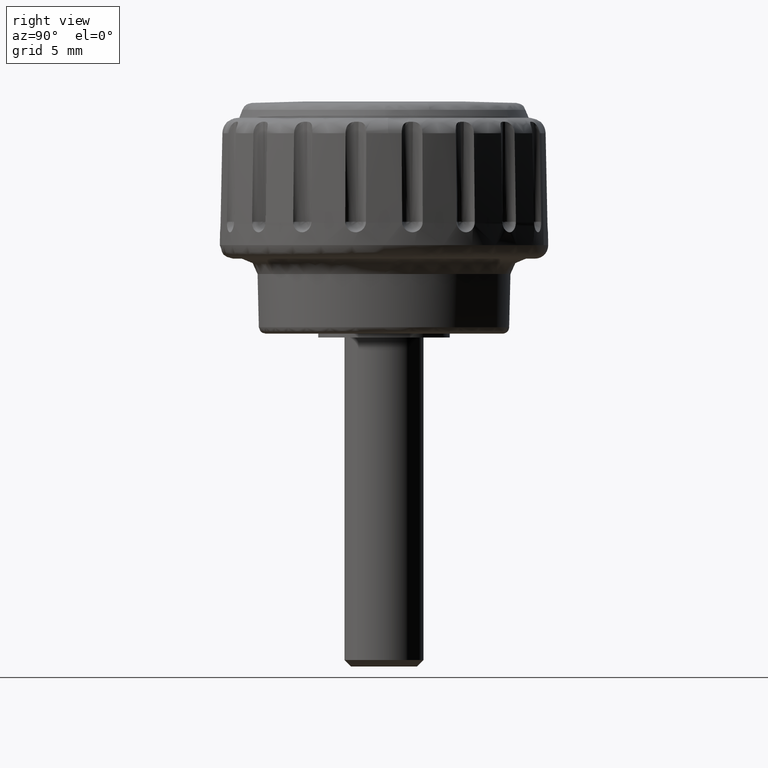
[diagram: clean part render]
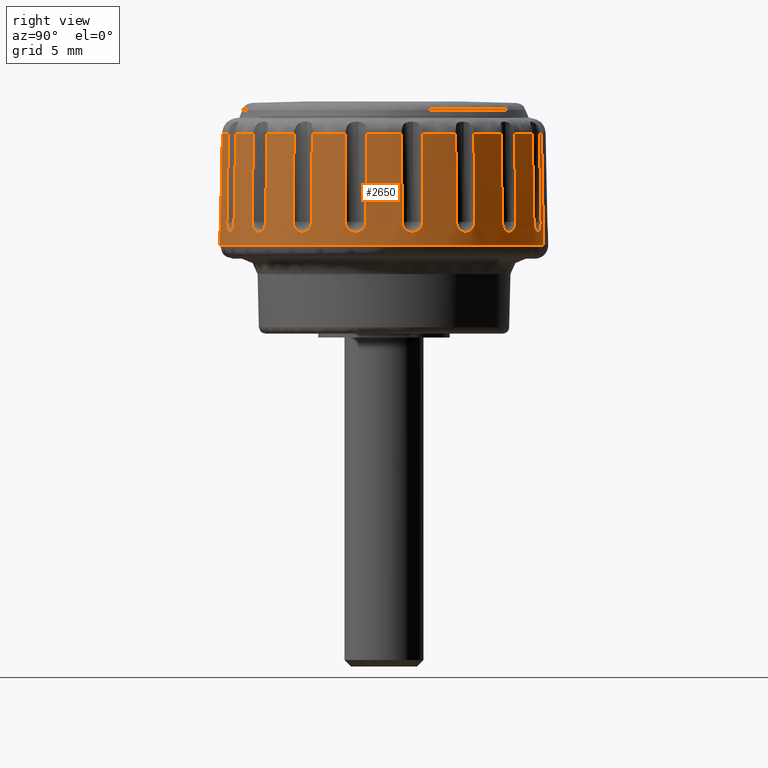
[diagram: same view with one face highlighted and labeled with its STEP entity id]
A machine part, right view. The second image highlights one B-rep face of the part: STEP entity #2650.
In plain terms, the highlighted face is a freeform B-spline surface patch.
Its self-contained STEP definition (entity closure, byte-faithful):
#1895=CARTESIAN_POINT('',(2.873227591302566,11.962629946308075,15.736891026403132));
#1896=CARTESIAN_POINT('',(14.170178331358636,9.249287586843673,15.736891026403127));
#1897=CARTESIAN_POINT('',(12.107375769124920,-2.184354368900753,15.736891026403130));
#1898=CARTESIAN_POINT('',(9.923021400224167,-14.291730138025677,15.736891026403129));
#1899=CARTESIAN_POINT('',(-2.184354368900753,-12.107375769124920,15.736891026403130));
#1900=CARTESIAN_POINT('',(2.915477382514702,12.138536170760844,6.802327856064681));
#1901=CARTESIAN_POINT('',(14.378545770732707,9.385295075630175,6.802327856064681));
#1902=CARTESIAN_POINT('',(12.285410429491140,-2.216474524052658,6.802327856064681));
#1903=CARTESIAN_POINT('',(10.068935905438483,-14.501884953543797,6.802327856064681));
#1904=CARTESIAN_POINT('',(-2.216474524052658,-12.285410429491140,6.802327856064681));
#1912=(BOUNDED_SURFACE()B_SPLINE_SURFACE(2,1,((#1895,#1900),(#1896,#1901),(#1897,#1902),(#1898,#1903),(#1899,#1904)),.UNSPECIFIED.,.F.,.F.,.U.)B_SPLINE_SURFACE_WITH_KNOTS((3,2,3),(2,2),(0.0,19.856407550699821,40.540165416012130),(0.0,8.936394524047545),.UNSPECIFIED.)GEOMETRIC_REPRESENTATION_ITEM()RATIONAL_B_SPLINE_SURFACE(((0.977505800795127,0.977505800795127),(0.718822509939086,0.718822509939086),(1.0,1.0),(0.707106781186548,0.707106781186548),(1.0,1.0)))REPRESENTATION_ITEM('')SURFACE());
#1913=CARTESIAN_POINT('',(2.914446903844929,12.134245757101640,7.020244848311712));
#1914=VERTEX_POINT('',#1913);
#1915=CARTESIAN_POINT('',(12.479339775979300,0.0,7.020244063727410));
#1916=VERTEX_POINT('',#1915);
#1917=CARTESIAN_POINT('',(2.914446903844929,12.134245757101640,7.020244848311712));
#1918=CARTESIAN_POINT('',(3.399610096655220,12.017730701480440,7.020244835623239));
#1919=CARTESIAN_POINT('',(4.376720298687912,11.720061669743661,7.020244806645689));
#1920=CARTESIAN_POINT('',(5.886300649277611,11.049123865005431,7.020244750410749));
#1921=CARTESIAN_POINT('',(7.382687315472131,10.118366461417819,7.020244680233293));
#1922=CARTESIAN_POINT('',(8.840431582089897,8.877807049344654,7.020244593731314));
#1923=CARTESIAN_POINT('',(9.935193952392039,7.608918816061425,7.020244510447437));
#1924=CARTESIAN_POINT('',(10.833394905045610,6.250113309285700,7.020244424854764));
#1925=CARTESIAN_POINT('',(11.453004063922069,5.028399300450916,7.020244350360998));
#1926=CARTESIAN_POINT('',(11.962264473414480,3.641968937104353,7.020244268364826));
#1927=CARTESIAN_POINT('',(12.364128265041851,2.017501421185323,7.020244174844168));
#1928=CARTESIAN_POINT('',(12.479426310907060,0.759289723549299,7.020244104976773));
#1929=CARTESIAN_POINT('',(12.479339775979300,0.0,7.020244063727410));
#1930=B_SPLINE_CURVE_WITH_KNOTS('',3,(#1917,#1918,#1919,#1920,#1921,#1922,#1923,#1924,#1925,#1926,#1927,#1928,#1929),.UNSPECIFIED.,.F.,.U.,(4,1,1,1,1,1,1,1,1,1,4),(0.000000013760989,1.496874883908451,3.058834941180857,4.946209869346665,6.768495263843622,8.786022795933356,9.957486672167367,11.649616012552389,12.886172091508699,14.383055982069781,16.660907701439619),.UNSPECIFIED.);
#1931=EDGE_CURVE('',#1914,#1916,#1930,.T.);
#1932=ORIENTED_EDGE('',*,*,#1931,.F.);
#1933=CARTESIAN_POINT('',(2.874232947293877,11.966815693287270,15.524290036675071));
#1934=VERTEX_POINT('',#1933);
#1935=CARTESIAN_POINT('',(2.874232947293877,11.966815693287270,15.524290036675071));
#1936=CARTESIAN_POINT('',(2.914446903844929,12.134245757101640,7.020244848311712));
#1937=QUASI_UNIFORM_CURVE('',1,(#1935,#1936),.UNSPECIFIED.,.F.,.U.);
#1938=EDGE_CURVE('',#1934,#1914,#1937,.T.);
#1939=ORIENTED_EDGE('',*,*,#1938,.F.);
#1940=CARTESIAN_POINT('',(3.448637072081465,11.814093079763900,15.524289876473100));
#1941=VERTEX_POINT('',#1940);
#1942=CARTESIAN_POINT('',(2.874232947293877,11.966815693287270,15.524290036675071));
#1943=CARTESIAN_POINT('',(3.066893235177232,11.920542169877351,15.524289983315970));
#1944=CARTESIAN_POINT('',(3.258435750314915,11.869614671011281,15.524289929894501));
#1945=CARTESIAN_POINT('',(3.448637072081465,11.814093079763900,15.524289876473100));
#1946=B_SPLINE_CURVE_WITH_KNOTS('',3,(#1942,#1943,#1944,#1945),.UNSPECIFIED.,.F.,.U.,(4,4),(1.234546E-011,0.594419085965772),.UNSPECIFIED.);
#1947=EDGE_CURVE('',#1934,#1941,#1946,.T.);
#1948=ORIENTED_EDGE('',*,*,#1947,.T.);
#1949=CARTESIAN_POINT('',(3.495302366670960,11.942304922920821,8.800002999999810));
#1950=VERTEX_POINT('',#1949);
#1951=CARTESIAN_POINT('',(3.495302366670960,11.942304922920821,8.800002999999810));
#1952=CARTESIAN_POINT('',(3.448637072081465,11.814093079763900,15.524289876473100));
#1953=QUASI_UNIFORM_CURVE('',1,(#1951,#1952),.UNSPECIFIED.,.F.,.U.);
#1954=EDGE_CURVE('',#1950,#1941,#1953,.T.);
#1955=ORIENTED_EDGE('',*,*,#1954,.F.);
#1956=CARTESIAN_POINT('',(4.998808680543220,11.395073377640021,8.800002999999810));
#1957=VERTEX_POINT('',#1956);
#1958=CARTESIAN_POINT('',(3.495302366670960,11.942304922920821,8.800002999999810));
#1959=CARTESIAN_POINT('',(3.495669095978264,11.943312503411690,8.747157524379992));
#1960=CARTESIAN_POINT('',(3.501015047893226,11.942847129943679,8.695204157489473));
#1961=CARTESIAN_POINT('',(3.516185973837361,11.940003938598540,8.618556361589670));
#1962=CARTESIAN_POINT('',(3.522443177315104,11.938695673080121,8.593222296505969));
#1963=CARTESIAN_POINT('',(3.537407681510372,11.935331053380310,8.542993820214605));
#1964=CARTESIAN_POINT('',(3.546156777113873,11.933263597441821,8.518030832137926));
#1965=CARTESIAN_POINT('',(3.575537821462716,11.926040819450071,8.445420545668039));
#1966=CARTESIAN_POINT('',(3.599398347077408,11.919850751685329,8.399506375009811));
#1967=CARTESIAN_POINT('',(3.655532519165203,11.904596265108591,8.312609392020473));
#1968=CARTESIAN_POINT('',(3.688100196912274,11.895440933273020,8.271465663519669));
#1969=CARTESIAN_POINT('',(3.759011031629244,11.874790099617989,8.197699241741427));
#1970=CARTESIAN_POINT('',(3.797599929167139,11.863232620208260,8.164588295599371));
#1971=CARTESIAN_POINT('',(3.860253994152228,11.843867250514950,8.120714271646786));
#1972=CARTESIAN_POINT('',(3.881937038011462,11.837070901632011,8.107086085148756));
#1973=CARTESIAN_POINT('',(3.925944183035346,11.823075237180140,8.082381622929043));
#1974=CARTESIAN_POINT('',(3.970824881411335,11.808605386211360,8.060056669934934));
#1975=CARTESIAN_POINT('',(4.017415223070569,11.793166471850521,8.042419778179699));
#1976=CARTESIAN_POINT('',(4.064867504720312,11.777221745595110,8.027159505494527));
#1977=CARTESIAN_POINT('',(4.089131037161716,11.768959590767000,8.020696974467969));
#1978=CARTESIAN_POINT('',(4.162447605741887,11.743647687692940,8.005191636593210));
#1979=CARTESIAN_POINT('',(4.211722788912519,11.726182675100651,8.000003499474149));
#1980=CARTESIAN_POINT('',(4.311062040074566,11.690026243388100,8.000002500596830));
#1981=CARTESIAN_POINT('',(4.359746777671903,11.671837067721500,8.005189027227013));
#1982=CARTESIAN_POINT('',(4.431367406313970,11.644419531913520,8.020427800111458));
#1983=CARTESIAN_POINT('',(4.455004974283636,11.635258374885570,8.026759811615618));
#1984=CARTESIAN_POINT('',(4.501801552856540,11.616901812122540,8.041985327112938));
#1985=CARTESIAN_POINT('',(4.525019384930421,11.607681574465120,8.050920390209479));
#1986=CARTESIAN_POINT('',(4.592449479143323,11.580589558203799,8.081019574435137));
#1987=CARTESIAN_POINT('',(4.634953326693080,11.563088372775679,8.105574582388540));
#1988=CARTESIAN_POINT('',(4.715166970218690,11.529342742830201,8.163580593571455));
#1989=CARTESIAN_POINT('',(4.753007352857018,11.513032361472829,8.197327670971736));
#1990=CARTESIAN_POINT('',(4.820648321064246,11.483255855820669,8.271038491890975));
#1991=CARTESIAN_POINT('',(4.850904710452025,11.469601091110761,8.311260221877220));
#1992=CARTESIAN_POINT('',(4.890864165298450,11.451148051377469,8.376772121108276));
#1993=CARTESIAN_POINT('',(4.903241191412278,11.445351382540011,8.399459260152321));
#1994=CARTESIAN_POINT('',(4.925636260222671,11.434714480467139,8.445579380772841));
#1995=CARTESIAN_POINT('',(4.945826072052276,11.424963394669829,8.492684682820219));
#1996=CARTESIAN_POINT('',(4.961681867195978,11.416993000446730,8.541733461921730));
#1997=CARTESIAN_POINT('',(4.975344819738416,11.409940284396580,8.591768626921738));
#1998=CARTESIAN_POINT('',(4.981098355296111,11.406862105200281,8.617395477364466));
#1999=CARTESIAN_POINT('',(4.994780849955439,11.399167678839049,8.694902635293731));
#2000=CARTESIAN_POINT('',(4.999175406295649,11.396080948364110,8.747158036628029));
#2001=CARTESIAN_POINT('',(4.998808680543220,11.395073377640021,8.800002999999810));
#2002=B_SPLINE_CURVE_WITH_KNOTS('',3,(#1958,#1959,#1960,#1961,#1962,#1963,#1964,#1965,#1966,#1967,#1968,#1969,#1970,#1971,#1972,#1973,#1974,#1975,#1976,#1977,#1978,#1979,#1980,#1981,#1982,#1983,#1984,#1985,#1986,#1987,#1988,#1989,#1990,#1991,#1992,#1993,#1994,#1995,#1996,#1997,#1998,#1999,#2000,#2001),.UNSPECIFIED.,.F.,.U.,(4,2,2,2,2,2,2,2,1,2,2,2,2,2,2,2,2,2,2,1,2,2,4),(0.0,0.062499999999995,0.093749999999994,0.124999999999993,0.187499999999991,0.249999999999990,0.312499999999989,0.343749999999989,0.374999999999988,0.406249999999988,0.437499999999987,0.499999999999987,0.562499999999986,0.593749999999986,0.624999999999985,0.687499999999987,0.749999999999988,0.812499999999989,0.843749999999991,0.874999999999992,0.906249999999993,0.937499999999995,1.0),.UNSPECIFIED.);
#2003=EDGE_CURVE('',#1950,#1957,#2002,.T.);
#2004=ORIENTED_EDGE('',*,*,#2003,.T.);
#2005=CARTESIAN_POINT('',(4.952143385953650,11.266861534483120,15.524289876473100));
#2006=VERTEX_POINT('',#2005);
#2007=CARTESIAN_POINT('',(4.952143385953650,11.266861534483120,15.524289876473100));
#2008=CARTESIAN_POINT('',(4.998808680543220,11.395073377640021,8.800002999999810));
#2009=QUASI_UNIFORM_CURVE('',1,(#2007,#2008),.UNSPECIFIED.,.F.,.U.);
#2010=EDGE_CURVE('',#2006,#1957,#2009,.T.);
#2011=ORIENTED_EDGE('',*,*,#2010,.F.);
#2012=CARTESIAN_POINT('',(7.281316616807300,9.922112742660501,15.524289876473100));
#2013=VERTEX_POINT('',#2012);
#2014=CARTESIAN_POINT('',(4.952143385953650,11.266861534483120,15.524289876473100));
#2015=CARTESIAN_POINT('',(5.774541146737719,10.905470735297079,15.524289876473100));
#2016=CARTESIAN_POINT('',(6.557168648348348,10.453677012038559,15.524289876473141));
#2017=CARTESIAN_POINT('',(7.281316616807300,9.922112742660501,15.524289876473100));
#2018=B_SPLINE_CURVE_WITH_KNOTS('',3,(#2014,#2015,#2016,#2017),.UNSPECIFIED.,.F.,.U.,(4,4),(2.347380E-010,2.694883445224870),.UNSPECIFIED.);
#2019=EDGE_CURVE('',#2006,#2013,#2018,.T.);
#2020=ORIENTED_EDGE('',*,*,#2019,.T.);
#2021=CARTESIAN_POINT('',(7.369018682752410,10.026631994828620,8.800002999999810));
#2022=VERTEX_POINT('',#2021);
#2023=CARTESIAN_POINT('',(7.369018682752410,10.026631994828620,8.800002999999810));
#2024=CARTESIAN_POINT('',(7.281316616807300,9.922112742660501,15.524289876473100));
#2025=QUASI_UNIFORM_CURVE('',1,(#2023,#2024),.UNSPECIFIED.,.F.,.U.);
#2026=EDGE_CURVE('',#2022,#2013,#2025,.T.);
#2027=ORIENTED_EDGE('',*,*,#2026,.F.);
#2028=CARTESIAN_POINT('',(8.594688259653870,8.998173104905391,8.800002999999810));
#2029=VERTEX_POINT('',#2028);
#2030=CARTESIAN_POINT('',(7.369018682752410,10.026631994828620,8.800002999999810));
#2031=CARTESIAN_POINT('',(7.369707908400160,10.027453381970510,8.747157524379949));
#2032=CARTESIAN_POINT('',(7.374572292866011,10.025187650716161,8.695204157489485));
#2033=CARTESIAN_POINT('',(7.387855871314848,10.017327162523850,8.618556361589622));
#2034=CARTESIAN_POINT('',(7.393288266089595,10.013957705439831,8.593222296505910));
#2035=CARTESIAN_POINT('',(7.406199532543651,10.005677835266489,8.542993820214505));
#2036=CARTESIAN_POINT('',(7.413713881544318,10.000742695245069,8.518030832137987));
#2037=CARTESIAN_POINT('',(7.438852696545972,9.983906595065390,8.445420545668053));
#2038=CARTESIAN_POINT('',(7.459157128530090,9.969929053674138,8.399506375009789));
#2039=CARTESIAN_POINT('',(7.506688654129601,9.936395507621144,8.312609392020390));
#2040=CARTESIAN_POINT('',(7.534160952678018,9.916653508043607,8.271465663519704));
#2041=CARTESIAN_POINT('',(7.593732339708849,9.872995138191637,8.197699241741418));
#2042=CARTESIAN_POINT('',(7.626041151205290,9.848936479808724,8.164588295599353));
#2043=CARTESIAN_POINT('',(7.678293367215979,9.809310032522975,8.120714271646742));
#2044=CARTESIAN_POINT('',(7.696344275307574,9.795507515860965,8.107086085148772));
#2045=CARTESIAN_POINT('',(7.732910665586616,9.767304563204130,8.082381622929042));
#2046=CARTESIAN_POINT('',(7.770135746163999,9.738357248133768,8.060056669934891));
#2047=CARTESIAN_POINT('',(7.808635926718623,9.707914578904044,8.042419778179724));
#2048=CARTESIAN_POINT('',(7.847773068065181,9.676701801130403,8.027159505494545));
#2049=CARTESIAN_POINT('',(7.867747507076044,9.660639298363455,8.020696974467969));
#2050=CARTESIAN_POINT('',(7.927985364834942,9.611778146532775,8.005191636593208));
#2051=CARTESIAN_POINT('',(7.968315504738261,9.578513297867445,8.000003499474156));
#2052=CARTESIAN_POINT('',(8.049297638053151,9.510561340872911,8.000002500596830));
#2053=CARTESIAN_POINT('',(8.088825262249795,9.476817945790019,8.005189027227019));
#2054=CARTESIAN_POINT('',(8.146749288954098,9.426558192037900,8.020427800111461));
#2055=CARTESIAN_POINT('',(8.165828036908785,9.409864995996010,8.026759811615602));
#2056=CARTESIAN_POINT('',(8.203524122244589,9.376610096913950,8.041985327112919));
#2057=CARTESIAN_POINT('',(8.222188240710004,9.360004941371726,8.050920390209480));
#2058=CARTESIAN_POINT('',(8.276285787376068,9.311484323121613,8.081019574435144));
#2059=CARTESIAN_POINT('',(8.310240581325077,9.280501416288951,8.105574582388536));
#2060=CARTESIAN_POINT('',(8.374075065041845,9.221356214990134,8.163580593571439));
#2061=CARTESIAN_POINT('',(8.404054914405347,9.193087296892864,8.197327670971717));
#2062=CARTESIAN_POINT('',(8.457432468361567,9.141971960617843,8.271038491890913));
#2063=CARTESIAN_POINT('',(8.481193969617699,9.118792384346463,8.311260221877152));
#2064=CARTESIAN_POINT('',(8.512432263173128,9.087785260604251,8.376772121108163));
#2065=CARTESIAN_POINT('',(8.522080285773033,9.078104981427090,8.399459260152337));
#2066=CARTESIAN_POINT('',(8.539486731904626,9.060449998396875,8.445579380772831));
#2067=CARTESIAN_POINT('',(8.555123881333945,9.044381652692863,8.492684682820199));
#2068=CARTESIAN_POINT('',(8.567297419652698,9.031468930729012,8.541733461921634));
#2069=CARTESIAN_POINT('',(8.577724224380660,9.020168540513369,8.591768626921608));
#2070=CARTESIAN_POINT('',(8.582077979997752,9.015308173181088,8.617395477364502));
#2071=CARTESIAN_POINT('',(8.592303670456175,9.003398088723833,8.694902635293719));
#2072=CARTESIAN_POINT('',(8.595377478620826,8.998994484085262,8.747158036628038));
#2073=CARTESIAN_POINT('',(8.594688259653870,8.998173104905391,8.800002999999810));
#2074=B_SPLINE_CURVE_WITH_KNOTS('',3,(#2030,#2031,#2032,#2033,#2034,#2035,#2036,#2037,#2038,#2039,#2040,#2041,#2042,#2043,#2044,#2045,#2046,#2047,#2048,#2049,#2050,#2051,#2052,#2053,#2054,#2055,#2056,#2057,#2058,#2059,#2060,#2061,#2062,#2063,#2064,#2065,#2066,#2067,#2068,#2069,#2070,#2071,#2072,#2073),.UNSPECIFIED.,.F.,.U.,(4,2,2,2,2,2,2,2,1,2,2,2,2,2,2,2,2,2,2,1,2,2,4),(0.0,0.062500000000001,0.093750000000001,0.125000000000001,0.187500000000004,0.250000000000007,0.312500000000009,0.343750000000010,0.375000000000010,0.406250000000011,0.437500000000011,0.500000000000012,0.562500000000013,0.593750000000012,0.625000000000012,0.687500000000009,0.750000000000006,0.812500000000004,0.843750000000004,0.875000000000003,0.906250000000003,0.937500000000003,1.0),.UNSPECIFIED.);
#2075=EDGE_CURVE('',#2022,#2029,#2074,.T.);
#2076=ORIENTED_EDGE('',*,*,#2075,.T.);
#2077=CARTESIAN_POINT('',(8.506986193708729,8.893653852737311,15.524289876473100));
#2078=VERTEX_POINT('',#2077);
#2079=CARTESIAN_POINT('',(8.506986193708729,8.893653852737311,15.524289876473100));
#2080=CARTESIAN_POINT('',(8.594688259653870,8.998173104905391,8.800002999999810));
#2081=QUASI_UNIFORM_CURVE('',1,(#2079,#2080),.UNSPECIFIED.,.F.,.U.);
#2082=EDGE_CURVE('',#2078,#2029,#2081,.T.);
#2083=ORIENTED_EDGE('',*,*,#2082,.F.);
#2084=CARTESIAN_POINT('',(10.235761916757779,6.833379174003980,15.524289876473100));
#2085=VERTEX_POINT('',#2084);
#2086=CARTESIAN_POINT('',(8.506986193708729,8.893653852737311,15.524289876473100));
#2087=CARTESIAN_POINT('',(9.156224093087847,8.272814631392524,15.524289876473089));
#2088=CARTESIAN_POINT('',(9.737049416980078,7.580524321117348,15.524289876473111));
#2089=CARTESIAN_POINT('',(10.235761916757779,6.833379174003980,15.524289876473100));
#2090=B_SPLINE_CURVE_WITH_KNOTS('',3,(#2086,#2087,#2088,#2089),.UNSPECIFIED.,.F.,.U.,(4,4),(2.343707E-010,2.694883445224844),.UNSPECIFIED.);
#2091=EDGE_CURVE('',#2078,#2085,#2090,.T.);
#2092=ORIENTED_EDGE('',*,*,#2091,.T.);
#2093=CARTESIAN_POINT('',(10.353922590560940,6.901599270831820,8.800002999999810));
#2094=VERTEX_POINT('',#2093);
#2095=CARTESIAN_POINT('',(10.353922590560940,6.901599270831820,8.800002999999810));
#2096=CARTESIAN_POINT('',(10.235761916757779,6.833379174003980,15.524289876473100));
#2097=QUASI_UNIFORM_CURVE('',1,(#2095,#2096),.UNSPECIFIED.,.F.,.U.);
#2098=EDGE_CURVE('',#2094,#2085,#2097,.T.);
#2099=ORIENTED_EDGE('',*,*,#2098,.F.);
#2100=CARTESIAN_POINT('',(11.153921590561000,5.515960356827460,8.800002999999810));
#2101=VERTEX_POINT('',#2100);
#2102=CARTESIAN_POINT('',(10.353922590560940,6.901599270831820,8.800002999999810));
#2103=CARTESIAN_POINT('',(10.354851181764220,6.902135393213000,8.747157524380036));
#2104=CARTESIAN_POINT('',(10.358647282222440,6.898342584801408,8.695204157489465));
#2105=CARTESIAN_POINT('',(10.368441317570280,6.886412890646386,8.618556361589716));
#2106=CARTESIAN_POINT('',(10.372393676658440,6.881388648249114,8.593222296506037));
#2107=CARTESIAN_POINT('',(10.381694416086900,6.869192202143057,8.542993820214701));
#2108=CARTESIAN_POINT('',(10.387067677095439,6.861984628760082,8.518030832137853));
#2109=CARTESIAN_POINT('',(10.404932150651289,6.837565888548553,8.445420545668023));
#2110=CARTESIAN_POINT('',(10.419231474846031,6.817486771309103,8.399506375009839));
#2111=CARTESIAN_POINT('',(10.452427350479290,6.769718806336356,8.312609392020553));
#2112=CARTESIAN_POINT('',(10.471490705176290,6.741771315526676,8.271465663519654));
#2113=CARTESIAN_POINT('',(10.512537456064990,6.680371253210895,8.197699241741447));
#2114=CARTESIAN_POINT('',(10.534669262026190,6.646713245123804,8.164588295599417));
#2115=CARTESIAN_POINT('',(10.570217240650949,6.591605254612426,8.120714271646836));
#2116=CARTESIAN_POINT('',(10.582458807056200,6.572461357384078,8.107086085148756));
#2117=CARTESIAN_POINT('',(10.607173996260279,6.533452808843954,8.082381622929043));
#2118=CARTESIAN_POINT('',(10.632253564937750,6.493519503086408,8.060056669934918));
#2119=CARTESIAN_POINT('',(10.658019894410669,6.451744914182886,8.042419778179728));
#2120=CARTESIAN_POINT('',(10.684121378604949,6.409028806542081,8.027159505494558));
#2121=CARTESIAN_POINT('',(10.697397512049310,6.387103330727235,8.020696974467981));
#2122=CARTESIAN_POINT('',(10.737291084325109,6.320586306164531,8.005191636593223));
#2123=CARTESIAN_POINT('',(10.763811770879290,6.275533853112103,8.000003499474151));
#2124=CARTESIAN_POINT('',(10.816669145900290,6.183982379713186,8.000002500596837));
#2125=CARTESIAN_POINT('',(10.842272041852540,6.138754716660458,8.005189027227017));
#2126=CARTESIAN_POINT('',(10.879512974130989,6.071714813021650,8.020427800111460));
#2127=CARTESIAN_POINT('',(10.891731723495040,6.049503023773815,8.026759811615611));
#2128=CARTESIAN_POINT('',(10.915780611367291,6.005360819992045,8.041985327112931));
#2129=CARTESIAN_POINT('',(10.927639848084169,5.983373573389522,8.050920390209438));
#2130=CARTESIAN_POINT('',(10.961879884680769,5.919276655799567,8.081019574435100));
#2131=CARTESIAN_POINT('',(10.983190175759420,5.878549023385364,8.105574582388535));
#2132=CARTESIAN_POINT('',(11.022946118834540,5.801138034899981,8.163580593571485));
#2133=CARTESIAN_POINT('',(11.041449422634329,5.764320228790346,8.197327670971651));
#2134=CARTESIAN_POINT('',(11.074125441563719,5.698031325829155,8.271038491890941));
#2135=CARTESIAN_POINT('',(11.088526066954360,5.668122736988709,8.311260221877232));
#2136=CARTESIAN_POINT('',(11.107275399987930,5.628301445977239,8.376772121108340));
#2137=CARTESIAN_POINT('',(11.113030725158570,5.615905140995028,8.399459260152206));
#2138=CARTESIAN_POINT('',(11.123349074316151,5.593361528520672,8.445579380772767));
#2139=CARTESIAN_POINT('',(11.132547465392751,5.572913991616832,8.492684682859542));
#2140=CARTESIAN_POINT('',(11.139570463454509,5.556616417681085,8.541733461921734));
#2141=CARTESIAN_POINT('',(11.145503493834569,5.542431347135945,8.591768626921791));
#2142=CARTESIAN_POINT('',(11.147932342329030,5.536375023699403,8.617395477364363));
#2143=CARTESIAN_POINT('',(11.153467859402170,5.521685813105747,8.694902635293699));
#2144=CARTESIAN_POINT('',(11.154850172763149,5.516496474011799,8.747158036627962));
#2145=CARTESIAN_POINT('',(11.153921590561000,5.515960356827460,8.800002999999810));
#2146=B_SPLINE_CURVE_WITH_KNOTS('',3,(#2102,#2103,#2104,#2105,#2106,#2107,#2108,#2109,#2110,#2111,#2112,#2113,#2114,#2115,#2116,#2117,#2118,#2119,#2120,#2121,#2122,#2123,#2124,#2125,#2126,#2127,#2128,#2129,#2130,#2131,#2132,#2133,#2134,#2135,#2136,#2137,#2138,#2139,#2140,#2141,#2142,#2143,#2144,#2145),.UNSPECIFIED.,.F.,.U.,(4,2,2,2,2,2,2,2,1,2,2,2,2,2,2,2,2,2,2,1,2,2,4),(0.0,0.062500000000001,0.093750000000001,0.125000000000002,0.187500000000001,0.250000000000000,0.312499999999999,0.343749999999998,0.374999999999998,0.406249999999998,0.437499999999998,0.499999999999999,0.562499999999999,0.593749999999999,0.624999999999998,0.687499999999999,0.749999999999999,0.812499999999999,0.843749999999999,0.874999999999999,0.906249999999999,0.937500000000000,1.0),.UNSPECIFIED.);
#2147=EDGE_CURVE('',#2094,#2101,#2146,.T.);
#2148=ORIENTED_EDGE('',*,*,#2147,.T.);
#2149=CARTESIAN_POINT('',(11.035760916757820,5.447740259999610,15.524289876473100));
#2150=VERTEX_POINT('',#2149);
#2151=CARTESIAN_POINT('',(11.035760916757820,5.447740259999610,15.524289876473100));
#2152=CARTESIAN_POINT('',(11.153921590561000,5.515960356827460,8.800002999999810));
#2153=QUASI_UNIFORM_CURVE('',1,(#2151,#2152),.UNSPECIFIED.,.F.,.U.);
#2154=EDGE_CURVE('',#2150,#2101,#2153,.T.);
#2155=ORIENTED_EDGE('',*,*,#2154,.F.);
#2156=CARTESIAN_POINT('',(11.955623265790200,2.920439227026650,15.524289876473100));
#2157=VERTEX_POINT('',#2156);
#2158=CARTESIAN_POINT('',(11.035760916757820,5.447740259999610,15.524289876473100));
#2159=CARTESIAN_POINT('',(11.433456689158371,4.642271841880040,15.524289876473130));
#2160=CARTESIAN_POINT('',(11.742577253155520,3.793114407490082,15.524289876473080));
#2161=CARTESIAN_POINT('',(11.955623265790200,2.920439227026650,15.524289876473100));
#2162=B_SPLINE_CURVE_WITH_KNOTS('',3,(#2158,#2159,#2160,#2161),.UNSPECIFIED.,.F.,.U.,(4,4),(2.347829E-010,2.694883445224855),.UNSPECIFIED.);
#2163=EDGE_CURVE('',#2150,#2157,#2162,.T.);
#2164=ORIENTED_EDGE('',*,*,#2163,.T.);
#2165=CARTESIAN_POINT('',(12.089990626324900,2.944131818015480,8.800002999999810));
#2166=VERTEX_POINT('',#2165);
#2167=CARTESIAN_POINT('',(12.089990626324900,2.944131818015480,8.800002999999810));
#2168=CARTESIAN_POINT('',(11.955623265790200,2.920439227026650,15.524289876473100));
#2169=QUASI_UNIFORM_CURVE('',1,(#2167,#2168),.UNSPECIFIED.,.F.,.U.);
#2170=EDGE_CURVE('',#2166,#2157,#2169,.T.);
#2171=ORIENTED_EDGE('',*,*,#2170,.F.);
#2172=CARTESIAN_POINT('',(12.367827363295619,1.368441382811472,8.800002999999810));
#2173=VERTEX_POINT('',#2172);
#2174=CARTESIAN_POINT('',(12.089990626324900,2.944131818015480,8.800002999999810));
#2175=CARTESIAN_POINT('',(12.091046581280001,2.944318011364476,8.747157524380002));
#2176=CARTESIAN_POINT('',(12.093316531991899,2.939455594464785,8.695204157489478));
#2177=CARTESIAN_POINT('',(12.098439719031250,2.924895591525663,8.618556361589675));
#2178=CARTESIAN_POINT('',(12.100435329596269,2.918822561598097,8.593222296505973));
#2179=CARTESIAN_POINT('',(12.105003735559800,2.904180610960054,8.542993820214610));
#2180=CARTESIAN_POINT('',(12.107587813997601,2.895569943938059,8.518030832137910));
#2181=CARTESIAN_POINT('',(12.116023226945270,2.866513824146375,8.445420545668032));
#2182=CARTESIAN_POINT('',(12.122592733817211,2.842754968934004,8.399506375009821));
#2183=CARTESIAN_POINT('',(12.137449046963960,2.786514106597207,8.312609392020486));
#2184=CARTESIAN_POINT('',(12.145804135887820,2.753732004408203,8.271465663519662));
#2185=CARTESIAN_POINT('',(12.163375406691721,2.681996003312240,8.197699241741422));
#2186=CARTESIAN_POINT('',(12.172660784688130,2.642798298035515,8.164588295599385));
#2187=CARTESIAN_POINT('',(12.187216915072581,2.578855601261422,8.120714271646792));
#2188=CARTESIAN_POINT('',(12.192172626216591,2.556679360006469,8.107086085148762));
#2189=CARTESIAN_POINT('',(12.202055597770389,2.511570222241835,8.082381622929043));
#2190=CARTESIAN_POINT('',(12.211964688430429,2.465467471824254,8.060056669934928));
#2191=CARTESIAN_POINT('',(12.221889367216709,2.417399595195940,8.042419778179720));
#2192=CARTESIAN_POINT('',(12.231806970048011,2.368332350692027,8.027159505494543));
#2193=CARTESIAN_POINT('',(12.236783500297561,2.343188437798165,8.020696974467978));
#2194=CARTESIAN_POINT('',(12.251521033507380,2.267038475352408,8.005191636593219));
#2195=CARTESIAN_POINT('',(12.261033480510360,2.215632408654371,8.000003499474152));
#2196=CARTESIAN_POINT('',(12.279390717718130,2.111523877698843,8.000002500596835));
#2197=CARTESIAN_POINT('',(12.287980798315621,2.060267070329668,8.005189027227008));
#2198=CARTESIAN_POINT('',(12.300046830117770,1.984533018586640,8.020427800111452));
#2199=CARTESIAN_POINT('',(12.303931819388341,1.959481705727251,8.026759811615616));
#2200=CARTESIAN_POINT('',(12.311432858995850,1.909776398491409,8.041985327112931));
#2201=CARTESIAN_POINT('',(12.315056814992531,1.885059047265927,8.050920390209463));
#2202=CARTESIAN_POINT('',(12.325309487776940,1.813116864567312,8.081019574435123));
#2203=CARTESIAN_POINT('',(12.331404940374719,1.767556860116587,8.105574582388549));
#2204=CARTESIAN_POINT('',(12.342287189338039,1.681216992120559,8.163580593571474));
#2205=CARTESIAN_POINT('',(12.347082176056309,1.640291068788143,8.197327670971708));
#2206=CARTESIAN_POINT('',(12.355115449829221,1.566824019158020,8.271038491890950));
#2207=CARTESIAN_POINT('',(12.358418271401630,1.533793834966449,8.311260221877204));
#2208=CARTESIAN_POINT('',(12.362417197638770,1.489961412081421,8.376772121108269));
#2209=CARTESIAN_POINT('',(12.363585648225120,1.476344258624803,8.399459260152273));
#2210=CARTESIAN_POINT('',(12.365571355217639,1.451631109079056,8.445579380772802));
#2211=CARTESIAN_POINT('',(12.367221573117490,1.429270676238424,8.492684682820226));
#2212=CARTESIAN_POINT('',(12.368246906813971,1.411553957735127,8.541733461921702));
#2213=CARTESIAN_POINT('',(12.368970551820070,1.396195135717594,8.591768626921720));
#2214=CARTESIAN_POINT('',(12.369181538217530,1.389673338164938,8.617395477364429));
#2215=CARTESIAN_POINT('',(12.369359216850819,1.373976737022194,8.694902635293715));
#2216=CARTESIAN_POINT('',(12.368883308015020,1.368627574355636,8.747158036628013));
#2217=CARTESIAN_POINT('',(12.367827363295619,1.368441382811470,8.800002999999810));
#2218=B_SPLINE_CURVE_WITH_KNOTS('',3,(#2174,#2175,#2176,#2177,#2178,#2179,#2180,#2181,#2182,#2183,#2184,#2185,#2186,#2187,#2188,#2189,#2190,#2191,#2192,#2193,#2194,#2195,#2196,#2197,#2198,#2199,#2200,#2201,#2202,#2203,#2204,#2205,#2206,#2207,#2208,#2209,#2210,#2211,#2212,#2213,#2214,#2215,#2216,#2217),.UNSPECIFIED.,.F.,.U.,(4,2,2,2,2,2,2,2,1,2,2,2,2,2,2,2,2,2,2,1,2,2,4),(0.0,0.062499999999997,0.093749999999996,0.124999999999995,0.187499999999994,0.249999999999994,0.312499999999993,0.343749999999994,0.374999999999994,0.406249999999994,0.437499999999995,0.499999999999996,0.562499999999996,0.593749999999996,0.624999999999996,0.687499999999996,0.749999999999996,0.812499999999995,0.843749999999996,0.874999999999997,0.906249999999998,0.937499999999999,1.0),.UNSPECIFIED.);
#2219=EDGE_CURVE('',#2166,#2173,#2218,.T.);
#2220=ORIENTED_EDGE('',*,*,#2219,.T.);
#2221=CARTESIAN_POINT('',(12.233460002760941,1.344748791822618,15.524289876473100));
#2222=VERTEX_POINT('',#2221);
#2223=CARTESIAN_POINT('',(12.233460002760941,1.344748791822618,15.524289876473100));
#2224=CARTESIAN_POINT('',(12.367827363295619,1.368441382811472,8.800002999999810));
#2225=QUASI_UNIFORM_CURVE('',1,(#2223,#2224),.UNSPECIFIED.,.F.,.U.);
#2226=EDGE_CURVE('',#2222,#2173,#2225,.T.);
#2227=ORIENTED_EDGE('',*,*,#2226,.F.);
#2228=CARTESIAN_POINT('',(12.303261313692831,0.309279804954855,15.524289879475759));
#2229=VERTEX_POINT('',#2228);
#2230=CARTESIAN_POINT('',(12.233460002760941,1.344748791822618,15.524289876473100));
#2231=CARTESIAN_POINT('',(12.271272379531560,1.000778727368414,15.524289876472981));
#2232=CARTESIAN_POINT('',(12.294567705809600,0.655212709790345,15.524289877475001));
#2233=CARTESIAN_POINT('',(12.303261313692831,0.309279804954855,15.524289879475759));
#2234=B_SPLINE_CURVE_WITH_KNOTS('',3,(#2230,#2231,#2232,#2233),.UNSPECIFIED.,.F.,.U.,(4,4),(5.050749E-011,1.038127929016137),.UNSPECIFIED.);
#2235=EDGE_CURVE('',#2222,#2229,#2234,.T.);
#2236=ORIENTED_EDGE('',*,*,#2235,.T.);
#2237=CARTESIAN_POINT('',(12.233460002760941,-1.344748791822626,15.524289876473100));
#2238=VERTEX_POINT('',#2237);
#2239=CARTESIAN_POINT('',(12.303261313692831,0.309279804954855,15.524289879475759));
#2240=CARTESIAN_POINT('',(12.317149665952041,-0.242796520837512,15.524289877476750));
#2241=CARTESIAN_POINT('',(12.293819134657481,-0.795805840563057,15.524289876472620));
#2242=CARTESIAN_POINT('',(12.233460002760941,-1.344748791822626,15.524289876473100));
#2243=B_SPLINE_CURVE_WITH_KNOTS('',3,(#2239,#2240,#2241,#2242),.UNSPECIFIED.,.F.,.U.,(4,4),(1.290634E-010,1.656752682503111),.UNSPECIFIED.);
#2244=EDGE_CURVE('',#2229,#2238,#2243,.T.);
#2245=ORIENTED_EDGE('',*,*,#2244,.T.);
#2246=CARTESIAN_POINT('',(12.367827363295619,-1.368441382811472,8.800002999999810));
#2247=VERTEX_POINT('',#2246);
#2248=CARTESIAN_POINT('',(12.367827363295619,-1.368441382811472,8.800002999999810));
#2249=CARTESIAN_POINT('',(12.233460002760941,-1.344748791822626,15.524289876473100));
#2250=QUASI_UNIFORM_CURVE('',1,(#2248,#2249),.UNSPECIFIED.,.F.,.U.);
#2251=EDGE_CURVE('',#2247,#2238,#2250,.T.);
#2252=ORIENTED_EDGE('',*,*,#2251,.F.);
#2253=CARTESIAN_POINT('',(12.089990626324900,-2.944131818015490,8.800002999999810));
#2254=VERTEX_POINT('',#2253);
#2255=CARTESIAN_POINT('',(12.367827363295619,-1.368441382811472,8.800002999999810));
#2256=CARTESIAN_POINT('',(12.368883318250729,-1.368627576160469,8.747157524379961));
#2257=CARTESIAN_POINT('',(12.369353329659230,-1.373973122308762,8.695204157489494));
#2258=CARTESIAN_POINT('',(12.369187736422949,-1.389407282794771,8.618556361589635));
#2259=CARTESIAN_POINT('',(12.368985898378620,-1.395796603215010,8.593222296505916));
#2260=CARTESIAN_POINT('',(12.368270953695511,-1.411118023045921,8.542993820214514));
#2261=CARTESIAN_POINT('',(12.367754171566050,-1.420093210184130,8.518030832137979));
#2262=CARTESIAN_POINT('',(12.365743088610619,-1.450282112686436,8.445420545668045));
#2263=CARTESIAN_POINT('',(12.363790398675400,-1.474855037289759,8.399506375009802));
#2264=CARTESIAN_POINT('',(12.358515258714281,-1.532785318966071,8.312609392020406));
#2265=CARTESIAN_POINT('',(12.355154334832850,-1.566448027198091,8.271465663519699));
#2266=CARTESIAN_POINT('',(12.347130770968640,-1.639867546631460,8.197699241741418));
#2267=CARTESIAN_POINT('',(12.342449767376280,-1.679877127344926,8.164588295599362));
#2268=CARTESIAN_POINT('',(12.334258365370451,-1.744942097457088,8.120714271646756));
#2269=CARTESIAN_POINT('',(12.331330489350780,-1.767475900756800,8.107086085148779));
#2270=CARTESIAN_POINT('',(12.325189211027761,-1.813244799991566,8.082381622929056));
#2271=CARTESIAN_POINT('',(12.318732641094160,-1.859956322964683,8.060056669934916));
#2272=CARTESIAN_POINT('',(12.311618606459520,-1.908519791990122,8.042419778179712));
#2273=CARTESIAN_POINT('',(12.304156118658151,-1.958019939514570,8.027159505494538));
#2274=CARTESIAN_POINT('',(12.300232802719050,-1.983349562507799,8.020696974467978));
#2275=CARTESIAN_POINT('',(12.288036732854961,-2.059947653511898,8.005191636593215));
#2276=CARTESIAN_POINT('',(12.279393598809399,-2.111507003539026,8.000003499474151));
#2277=CARTESIAN_POINT('',(12.261036544472709,-2.215615566739642,8.000002500596830));
#2278=CARTESIAN_POINT('',(12.251577719219309,-2.266719190986627,8.005189027227013));
#2279=CARTESIAN_POINT('',(12.237013509034179,-2.342012746478104,8.020427800111458));
#2280=CARTESIAN_POINT('',(12.232096151168900,-2.366882024900204,8.026759811615612));
#2281=CARTESIAN_POINT('',(12.222144606431440,-2.416155241965266,8.041985327112929));
#2282=CARTESIAN_POINT('',(12.217096179130790,-2.440621420466678,8.050920390209470));
#2283=CARTESIAN_POINT('',(12.202124864451889,-2.511731579286960,8.081019574435128));
#2284=CARTESIAN_POINT('',(12.192270277026230,-2.556628746843393,8.105574582388538));
#2285=CARTESIAN_POINT('',(12.172966272047891,-2.641483632028992,8.163580593571439));
#2286=CARTESIAN_POINT('',(12.163474595519910,-2.681581402228021,8.197327670971740));
#2287=CARTESIAN_POINT('',(12.145896192760871,-2.753365388083497,8.271038491890952));
#2288=CARTESIAN_POINT('',(12.137702841488959,-2.785533239939080,8.311260221877161));
#2289=CARTESIAN_POINT('',(12.126469031407630,-2.828089957600062,8.376772121108177));
#2290=CARTESIAN_POINT('',(12.122909675024440,-2.841285529856436,8.399459260152346));
#2291=CARTESIAN_POINT('',(12.116323234282691,-2.865187445911114,8.445579380772845));
#2292=CARTESIAN_POINT('',(12.110226213420900,-2.886763787411631,8.492684682820231));
#2293=CARTESIAN_POINT('',(12.105130237327559,-2.903762741831562,8.541733461921661));
#2294=CARTESIAN_POINT('',(12.100557214692120,-2.918442814714099,8.591768626921644));
#2295=CARTESIAN_POINT('',(12.098524890919190,-2.924643461346519,8.617395477364507));
#2296=CARTESIAN_POINT('',(12.093323300447191,-2.939454211283378,8.694902635293724));
#2297=CARTESIAN_POINT('',(12.091046571044290,-2.944318009559660,8.747158036628045));
#2298=CARTESIAN_POINT('',(12.089990626324900,-2.944131818015495,8.800002999999800));
#2299=B_SPLINE_CURVE_WITH_KNOTS('',3,(#2255,#2256,#2257,#2258,#2259,#2260,#2261,#2262,#2263,#2264,#2265,#2266,#2267,#2268,#2269,#2270,#2271,#2272,#2273,#2274,#2275,#2276,#2277,#2278,#2279,#2280,#2281,#2282,#2283,#2284,#2285,#2286,#2287,#2288,#2289,#2290,#2291,#2292,#2293,#2294,#2295,#2296,#2297,#2298),.UNSPECIFIED.,.F.,.U.,(4,2,2,2,2,2,2,2,1,2,2,2,2,2,2,2,2,2,2,1,2,2,4),(0.0,0.062500000000001,0.093750000000001,0.125000000000002,0.187500000000002,0.250000000000003,0.312500000000004,0.343750000000004,0.375000000000004,0.406250000000004,0.437500000000004,0.500000000000005,0.562500000000006,0.593750000000006,0.625000000000007,0.687500000000007,0.750000000000007,0.812500000000007,0.843750000000006,0.875000000000006,0.906250000000005,0.937500000000004,1.0),.UNSPECIFIED.);
#2300=EDGE_CURVE('',#2247,#2254,#2299,.T.);
#2301=ORIENTED_EDGE('',*,*,#2300,.T.);
#2302=CARTESIAN_POINT('',(11.955623265790200,-2.920439227026655,15.524289876473100));
#2303=VERTEX_POINT('',#2302);
#2304=CARTESIAN_POINT('',(11.955623265790200,-2.920439227026655,15.524289876473100));
#2305=CARTESIAN_POINT('',(12.089990626324900,-2.944131818015490,8.800002999999810));
#2306=QUASI_UNIFORM_CURVE('',1,(#2304,#2305),.UNSPECIFIED.,.F.,.U.);
#2307=EDGE_CURVE('',#2303,#2254,#2306,.T.);
#2308=ORIENTED_EDGE('',*,*,#2307,.F.);
#2309=CARTESIAN_POINT('',(11.035760916757800,-5.447740259999651,15.524289876473100));
#2310=VERTEX_POINT('',#2309);
#2311=CARTESIAN_POINT('',(11.955623265790200,-2.920439227026655,15.524289876473100));
#2312=CARTESIAN_POINT('',(11.742525789697741,-3.793095586620796,15.524289876473150));
#2313=CARTESIAN_POINT('',(11.433505089763070,-4.642290010110066,15.524289876473119));
#2314=CARTESIAN_POINT('',(11.035760916757800,-5.447740259999651,15.524289876473100));
#2315=B_SPLINE_CURVE_WITH_KNOTS('',3,(#2311,#2312,#2313,#2314),.UNSPECIFIED.,.F.,.U.,(4,4),(2.345995E-010,2.694883445224899),.UNSPECIFIED.);
#2316=EDGE_CURVE('',#2303,#2310,#2315,.T.);
#2317=ORIENTED_EDGE('',*,*,#2316,.T.);
#2318=CARTESIAN_POINT('',(11.153921590560961,-5.515960356827510,8.800002999999810));
#2319=VERTEX_POINT('',#2318);
#2320=CARTESIAN_POINT('',(11.153921590560961,-5.515960356827510,8.800002999999810));
#2321=CARTESIAN_POINT('',(11.035760916757800,-5.447740259999651,15.524289876473100));
#2322=QUASI_UNIFORM_CURVE('',1,(#2320,#2321),.UNSPECIFIED.,.F.,.U.);
#2323=EDGE_CURVE('',#2319,#2310,#2322,.T.);
#2324=ORIENTED_EDGE('',*,*,#2323,.F.);
#2325=CARTESIAN_POINT('',(10.353922590560940,-6.901599270831831,8.800002999999810));
#2326=VERTEX_POINT('',#2325);
#2327=CARTESIAN_POINT('',(11.153921590560961,-5.515960356827510,8.800002999999810));
#2328=CARTESIAN_POINT('',(11.154850181764241,-5.516496479208692,8.747157524379999));
#2329=CARTESIAN_POINT('',(11.153463563556990,-5.521680402847092,8.695204157489478));
#2330=CARTESIAN_POINT('',(11.148029163033270,-5.536127133341403,8.618556361589672));
#2331=CARTESIAN_POINT('',(11.145654221026540,-5.542062097915271,8.593222296505969));
#2332=CARTESIAN_POINT('',(11.139742158577031,-5.556214997587342,8.542993820214601));
#2333=CARTESIAN_POINT('',(11.136186847432020,-5.564472164813351,8.518030832137916));
#2334=CARTESIAN_POINT('',(11.123971834858329,-5.592152622843729,8.445420545668036));
#2335=CARTESIAN_POINT('',(11.113732471340770,-5.614575759473078,8.399506375009825));
#2336=CARTESIAN_POINT('',(11.088962138003890,-5.667208213558760,8.312609392020484));
#2337=CARTESIAN_POINT('',(11.074290578339220,-5.697691308412470,8.271465663519663));
#2338=CARTESIAN_POINT('',(11.041639940024140,-5.763938868582805,8.197699241741418));
#2339=CARTESIAN_POINT('',(11.023557152960519,-5.799934578820407,8.164588295599378));
#2340=CARTESIAN_POINT('',(10.993606222538510,-5.858274026618357,8.120714271646785));
#2341=CARTESIAN_POINT('',(10.983147904413981,-5.878447482721533,8.107086085148769));
#2342=CARTESIAN_POINT('',(10.961723105015510,-5.919355738701684,8.082381622929059));
#2343=CARTESIAN_POINT('',(10.939679654459450,-5.961041950759149,8.060056677731044));
#2344=CARTESIAN_POINT('',(10.916384941624459,-6.004243525508698,8.042419778179717));
#2345=CARTESIAN_POINT('',(10.892442449353860,-6.048206127717833,8.027159505494542));
#2346=CARTESIAN_POINT('',(10.880092497030329,-6.070666334452081,8.020696974467981));
#2347=CARTESIAN_POINT('',(10.842433850112780,-6.138473693771994,8.005191636593221));
#2348=CARTESIAN_POINT('',(10.816677624543640,-6.183967508579946,8.000003499474149));
#2349=CARTESIAN_POINT('',(10.763820410336789,-6.275519074824936,8.000002500596837));
#2350=CARTESIAN_POINT('',(10.737453553155451,-6.320305664656389,8.005189027227010));
#2351=CARTESIAN_POINT('',(10.698015759676201,-6.386077209889532,8.020427800111452));
#2352=CARTESIAN_POINT('',(10.684889160606099,-6.407764851865184,8.026759811615614));
#2353=CARTESIAN_POINT('',(10.658685334688190,-6.450662901586195,8.041985327112927));
#2354=CARTESIAN_POINT('',(10.645573438929540,-6.471926925153822,8.050920390209463));
#2355=CARTESIAN_POINT('',(10.607183898290680,-6.533628125467930,8.081019574435128));
#2356=CARTESIAN_POINT('',(10.582567879523319,-6.572447195111176,8.105574582388536));
#2357=CARTESIAN_POINT('',(10.535405968500481,-6.645582346008299,8.163580593571460));
#2358=CARTESIAN_POINT('',(10.512772464997790,-6.680015580207718,8.197327670971713));
#2359=CARTESIAN_POINT('',(10.471702600509120,-6.741458294175666,8.271038491890961));
#2360=CARTESIAN_POINT('',(10.453001315477261,-6.768883896014573,8.311260221877198));
#2361=CARTESIAN_POINT('',(10.427889732366630,-6.805031940231378,8.376772121108258));
#2362=CARTESIAN_POINT('',(10.420031879924270,-6.816214350527337,8.399459260152293));
#2363=CARTESIAN_POINT('',(10.405667713407199,-6.836422109260074,8.445579380772820));
#2364=CARTESIAN_POINT('',(10.392558822541950,-6.854611918058293,8.492684682859542));
#2365=CARTESIAN_POINT('',(10.381956208524439,-6.868842799758338,8.541733461921714));
#2366=CARTESIAN_POINT('',(10.372638092267909,-6.881073490061458,8.591768626921732));
#2367=CARTESIAN_POINT('',(10.368607586565499,-6.886205096277950,8.617395477364434));
#2368=CARTESIAN_POINT('',(10.358654115566440,-6.898343599983186,8.694902635293714));
#2369=CARTESIAN_POINT('',(10.354851172763111,-6.902135388016166,8.747158036628017));
#2370=CARTESIAN_POINT('',(10.353922590560940,-6.901599270831831,8.800002999999810));
#2371=B_SPLINE_CURVE_WITH_KNOTS('',3,(#2327,#2328,#2329,#2330,#2331,#2332,#2333,#2334,#2335,#2336,#2337,#2338,#2339,#2340,#2341,#2342,#2343,#2344,#2345,#2346,#2347,#2348,#2349,#2350,#2351,#2352,#2353,#2354,#2355,#2356,#2357,#2358,#2359,#2360,#2361,#2362,#2363,#2364,#2365,#2366,#2367,#2368,#2369,#2370),.UNSPECIFIED.,.F.,.U.,(4,2,2,2,2,2,2,2,1,2,2,2,2,2,2,2,2,2,2,1,2,2,4),(0.0,0.062499999999999,0.093749999999998,0.124999999999998,0.187499999999998,0.249999999999999,0.312500000000000,0.343750000000000,0.375000000000000,0.406249999999999,0.437499999999999,0.500000000000000,0.562500000000000,0.593750000000000,0.625000000000000,0.687499999999999,0.749999999999999,0.812499999999998,0.843749999999999,0.874999999999999,0.906250000000000,0.937500000000001,1.0),.UNSPECIFIED.);
#2372=EDGE_CURVE('',#2319,#2326,#2371,.T.);
#2373=ORIENTED_EDGE('',*,*,#2372,.T.);
#2374=CARTESIAN_POINT('',(10.235761916757820,-6.833379174003910,15.524289876473100));
#2375=VERTEX_POINT('',#2374);
#2376=CARTESIAN_POINT('',(10.235761916757820,-6.833379174003910,15.524289876473100));
#2377=CARTESIAN_POINT('',(10.353922590560940,-6.901599270831831,8.800002999999810));
#2378=QUASI_UNIFORM_CURVE('',1,(#2376,#2377),.UNSPECIFIED.,.F.,.U.);
#2379=EDGE_CURVE('',#2375,#2326,#2378,.T.);
#2380=ORIENTED_EDGE('',*,*,#2379,.F.);
#2381=CARTESIAN_POINT('',(8.506986193708769,-8.893653852737261,15.524289876473100));
#2382=VERTEX_POINT('',#2381);
#2383=CARTESIAN_POINT('',(10.235761916757820,-6.833379174003910,15.524289876473100));
#2384=CARTESIAN_POINT('',(9.737079954942818,-7.580549804825234,15.524289876473031));
#2385=CARTESIAN_POINT('',(9.156196803351458,-8.272791452406581,15.524289876473150));
#2386=CARTESIAN_POINT('',(8.506986193708769,-8.893653852737261,15.524289876473100));
#2387=B_SPLINE_CURVE_WITH_KNOTS('',3,(#2383,#2384,#2385,#2386),.UNSPECIFIED.,.F.,.U.,(4,4),(2.348526E-010,2.694883445224860),.UNSPECIFIED.);
#2388=EDGE_CURVE('',#2375,#2382,#2387,.T.);
#2389=ORIENTED_EDGE('',*,*,#2388,.T.);
#2390=CARTESIAN_POINT('',(8.594688259653870,-8.998173104905391,8.800002999999810));
#2391=VERTEX_POINT('',#2390);
#2392=CARTESIAN_POINT('',(8.594688259653870,-8.998173104905391,8.800002999999810));
#2393=CARTESIAN_POINT('',(8.506986193708769,-8.893653852737261,15.524289876473100));
#2394=QUASI_UNIFORM_CURVE('',1,(#2392,#2393),.UNSPECIFIED.,.F.,.U.);
#2395=EDGE_CURVE('',#2391,#2382,#2394,.T.);
#2396=ORIENTED_EDGE('',*,*,#2395,.F.);
#2397=CARTESIAN_POINT('',(7.369018682752390,-10.026631994828620,8.800002999999800));
#2398=VERTEX_POINT('',#2397);
#2399=CARTESIAN_POINT('',(8.594688259653870,-8.998173104905391,8.800002999999810));
#2400=CARTESIAN_POINT('',(8.595377485301670,-8.998994492047265,8.747157524379963));
#2401=CARTESIAN_POINT('',(8.592301484098295,-9.003391535479343,8.695204157489497));
#2402=CARTESIAN_POINT('',(8.582253745193501,-9.015108347073333,8.618556361589649));
#2403=CARTESIAN_POINT('',(8.577992152280801,-9.019873111482491,8.593222296505932));
#2404=CARTESIAN_POINT('',(8.567596054049043,-9.031150442420726,8.542993820214530));
#2405=CARTESIAN_POINT('',(8.561431036883366,-9.037693653504229,8.518030832138004));
#2406=CARTESIAN_POINT('',(8.540485405482192,-9.059526995304175,8.445420545668078));
#2407=CARTESIAN_POINT('',(8.523194386739416,-9.077095782751801,8.399506375009830));
#2408=CARTESIAN_POINT('',(8.481916527798346,-9.118082158511900,8.312609392020443));
#2409=CARTESIAN_POINT('',(8.457703938975223,-9.141708928865253,8.271465663519702));
#2410=CARTESIAN_POINT('',(8.404364375062123,-9.192794096306212,8.197699241741423));
#2411=CARTESIAN_POINT('',(8.375060855520610,-9.220434322173221,8.164588295599375));
#2412=CARTESIAN_POINT('',(8.326962920919959,-9.265011649254031,8.120714271646765));
#2413=CARTESIAN_POINT('',(8.310235588204787,-9.280391541625974,8.107086085148795));
#2414=CARTESIAN_POINT('',(8.276111414734686,-9.311505014938765,8.082381622929074));
#2415=CARTESIAN_POINT('',(8.241139807018744,-9.343137914387549,8.060056669934911));
#2416=CARTESIAN_POINT('',(8.204474144145770,-9.375766876655048,8.042419778179729));
#2417=CARTESIAN_POINT('',(8.166939465327316,-9.408889394903554,8.027159505494549));
#2418=CARTESIAN_POINT('',(8.147652463135485,-9.425771152969279,8.020696974467985));
#2419=CARTESIAN_POINT('',(8.089073427765133,-9.476609212340986,8.005191636593226));
#2420=CARTESIAN_POINT('',(8.049310691597466,-9.510550266446746,8.000003499474147));
#2421=CARTESIAN_POINT('',(7.968328677643192,-9.578502365689715,8.000002500596835));
#2422=CARTESIAN_POINT('',(7.928234020643356,-9.611569997392280,8.005189027227019));
#2423=CARTESIAN_POINT('',(7.868679423803447,-9.659886513327329,8.020427800111463));
#2424=CARTESIAN_POINT('',(7.848926845104351,-9.675776669158758,8.026759811615616));
#2425=CARTESIAN_POINT('',(7.809631306138951,-9.707125413631571,8.041985327112922));
#2426=CARTESIAN_POINT('',(7.790037430061708,-9.722622527199675,8.050920390209457));
#2427=CARTESIAN_POINT('',(7.732860008633233,-9.767472693636945,8.081019574435119));
#2428=CARTESIAN_POINT('',(7.696451613681278,-9.795531512659551,8.105574582388519));
#2429=CARTESIAN_POINT('',(7.627120219118996,-9.848125750710080,8.163580593571421));
#2430=CARTESIAN_POINT('',(7.594074823198882,-9.872741292685147,8.197327670971754));
#2431=CARTESIAN_POINT('',(7.534467128764590,-9.916431836663083,8.271038491890955));
#2432=CARTESIAN_POINT('',(7.507513560949222,-9.935807256144733,8.311260221877173));
#2433=CARTESIAN_POINT('',(7.471553032339950,-9.961186639296461,8.376772121108193));
#2434=CARTESIAN_POINT('',(7.460344456812410,-9.969007123915654,8.399459260152346));
#2435=CARTESIAN_POINT('',(7.439935094994540,-9.983083371388505,8.445579380772838));
#2436=CARTESIAN_POINT('',(7.421395501064917,-9.995692718431830,8.492684682820249));
#2437=CARTESIAN_POINT('',(7.406565039617535,-10.005439042712039,8.541733461921655));
#2438=CARTESIAN_POINT('',(7.393625732081203,-10.013745148679410,8.591768626921638));
#2439=CARTESIAN_POINT('',(7.388083182920981,-10.017188767035790,8.617395477364497));
#2440=CARTESIAN_POINT('',(7.374578366894945,-10.025190941817300,8.694902635293721));
#2441=CARTESIAN_POINT('',(7.369707901719353,-10.027453374008500,8.747158036628054));
#2442=CARTESIAN_POINT('',(7.369018682752390,-10.026631994828620,8.800002999999800));
#2443=B_SPLINE_CURVE_WITH_KNOTS('',3,(#2399,#2400,#2401,#2402,#2403,#2404,#2405,#2406,#2407,#2408,#2409,#2410,#2411,#2412,#2413,#2414,#2415,#2416,#2417,#2418,#2419,#2420,#2421,#2422,#2423,#2424,#2425,#2426,#2427,#2428,#2429,#2430,#2431,#2432,#2433,#2434,#2435,#2436,#2437,#2438,#2439,#2440,#2441,#2442),.UNSPECIFIED.,.F.,.U.,(4,2,2,2,2,2,2,2,1,2,2,2,2,2,2,2,2,2,2,1,2,2,4),(0.0,0.062499999999999,0.093749999999998,0.124999999999996,0.187499999999995,0.249999999999993,0.312499999999991,0.343749999999990,0.374999999999990,0.406249999999990,0.437499999999989,0.499999999999989,0.562499999999989,0.593749999999989,0.624999999999990,0.687499999999992,0.749999999999994,0.812499999999996,0.843749999999996,0.874999999999996,0.906249999999997,0.937499999999997,1.0),.UNSPECIFIED.);
#2444=EDGE_CURVE('',#2391,#2398,#2443,.T.);
#2445=ORIENTED_EDGE('',*,*,#2444,.T.);
#2446=CARTESIAN_POINT('',(7.281316616807290,-9.922112742660511,15.524289876473100));
#2447=VERTEX_POINT('',#2446);
#2448=CARTESIAN_POINT('',(7.281316616807290,-9.922112742660511,15.524289876473100));
#2449=CARTESIAN_POINT('',(7.369018682752390,-10.026631994828620,8.800002999999800));
#2450=QUASI_UNIFORM_CURVE('',1,(#2448,#2449),.UNSPECIFIED.,.F.,.U.);
#2451=EDGE_CURVE('',#2447,#2398,#2450,.T.);
#2452=ORIENTED_EDGE('',*,*,#2451,.F.);
#2453=CARTESIAN_POINT('',(4.952143385953621,-11.266861534483141,15.524289876473100));
#2454=VERTEX_POINT('',#2453);
#2455=CARTESIAN_POINT('',(7.281316616807290,-9.922112742660511,15.524289876473100));
#2456=CARTESIAN_POINT('',(6.557145239057979,-10.453636463967580,15.524289876473111));
#2457=CARTESIAN_POINT('',(5.774564582862058,-10.905511773514620,15.524289876473119));
#2458=CARTESIAN_POINT('',(4.952143385953621,-11.266861534483141,15.524289876473100));
#2459=B_SPLINE_CURVE_WITH_KNOTS('',3,(#2455,#2456,#2457,#2458),.UNSPECIFIED.,.F.,.U.,(4,4),(2.344072E-010,2.694883445224891),.UNSPECIFIED.);
#2460=EDGE_CURVE('',#2447,#2454,#2459,.T.);
#2461=ORIENTED_EDGE('',*,*,#2460,.T.);
#2462=CARTESIAN_POINT('',(4.998808680543161,-11.395073377640060,8.800002999999810));
#2463=VERTEX_POINT('',#2462);
#2464=CARTESIAN_POINT('',(4.998808680543161,-11.395073377640060,8.800002999999810));
#2465=CARTESIAN_POINT('',(4.952143385953621,-11.266861534483141,15.524289876473100));
#2466=QUASI_UNIFORM_CURVE('',1,(#2464,#2465),.UNSPECIFIED.,.F.,.U.);
#2467=EDGE_CURVE('',#2463,#2454,#2466,.T.);
#2468=ORIENTED_EDGE('',*,*,#2467,.F.);
#2469=CARTESIAN_POINT('',(3.495302366670870,-11.942304922920860,8.800002999999810));
#2470=VERTEX_POINT('',#2469);
#2471=CARTESIAN_POINT('',(4.998808680543161,-11.395073377640060,8.800002999999810));
#2472=CARTESIAN_POINT('',(4.999175409850466,-11.396080958130931,8.747157524379960));
#2473=CARTESIAN_POINT('',(4.994781036793229,-11.399160773024891,8.695204157489494));
#2474=CARTESIAN_POINT('',(4.981331865108125,-11.406734445318589,8.618556361589636));
#2475=CARTESIAN_POINT('',(4.975697632289116,-11.409754308654859,8.593222296505919));
#2476=CARTESIAN_POINT('',(4.962071421151945,-11.416795858312440,8.542993820214520));
#2477=CARTESIAN_POINT('',(4.954040290021804,-11.420835905429220,8.518030832137965));
#2478=CARTESIAN_POINT('',(4.926890392064723,-11.434188707751851,8.445420545668036));
#2479=CARTESIAN_POINT('',(4.904633270145333,-11.444784090963900,8.399506375009809));
#2480=CARTESIAN_POINT('',(4.851826604584709,-11.469180826587211,8.312609392020418));
#2481=CARTESIAN_POINT('',(4.820993382154891,-11.483101535241710,8.271465663519686));
#2482=CARTESIAN_POINT('',(4.753398431259857,-11.512862684823100,8.197699241741400));
#2483=CARTESIAN_POINT('',(4.716408616171044,-11.528813607153650,8.164588295599367));
#2484=CARTESIAN_POINT('',(4.655964998154520,-11.554252129980050,8.120714271646756));
#2485=CARTESIAN_POINT('',(4.634986214043246,-11.562983416617760,8.107086085148771));
#2486=CARTESIAN_POINT('',(4.592278545441177,-11.580549363195690,8.082381622929056));
#2487=CARTESIAN_POINT('',(4.548596902030211,-11.598313597404820,8.060056677731069));
#2488=CARTESIAN_POINT('',(4.502982679740962,-11.616434370894170,8.042419778179710));
#2489=CARTESIAN_POINT('',(4.456383050593026,-11.634721740644970,8.027159505494536));
#2490=CARTESIAN_POINT('',(4.432485295643051,-11.643988860871250,8.020696974467978));
#2491=CARTESIAN_POINT('',(4.360051368020069,-11.671725800044671,8.005191636593212));
#2492=CARTESIAN_POINT('',(4.311078094071182,-11.690020301406459,8.000003499474151));
#2493=CARTESIAN_POINT('',(4.211738906419607,-11.726176907612540,8.000002500596832));
#2494=CARTESIAN_POINT('',(4.162752456969566,-11.743537136776631,8.005189027227013));
#2495=CARTESIAN_POINT('',(4.090264220080131,-11.768570938516000,8.020427800111451));
#2496=CARTESIAN_POINT('',(4.066268114260160,-11.776747020896210,8.026759811615605));
#2497=CARTESIAN_POINT('',(4.018620484186910,-11.792765338879210,8.041985327112924));
#2498=CARTESIAN_POINT('',(3.994907938420834,-11.800626361838390,8.050920390209461));
#2499=CARTESIAN_POINT('',(3.925839077075875,-11.823215902408560,8.081019574435121));
#2500=CARTESIAN_POINT('',(3.882029695701206,-11.837130163132340,8.105574582388528));
#2501=CARTESIAN_POINT('',(3.798891207006095,-11.862839847019121,8.163580593571425));
#2502=CARTESIAN_POINT('',(3.759419681114620,-11.874668699120900,8.197327670971719));
#2503=CARTESIAN_POINT('',(3.688463724399354,-11.895337348701350,8.271038491890931));
#2504=CARTESIAN_POINT('',(3.656508871871322,-11.904325624285530,8.311260221877173));
#2505=CARTESIAN_POINT('',(3.614036768234562,-11.915875218204301,8.376772121108193));
#2506=CARTESIAN_POINT('',(3.600829389251466,-11.919390511283520,8.399459260152341));
#2507=CARTESIAN_POINT('',(3.576836502378117,-11.925637444307981,8.445579380772843));
#2508=CARTESIAN_POINT('',(3.555102332087007,-11.931145440104540,8.492684682820217));
#2509=CARTESIAN_POINT('',(3.537832817674922,-11.935231672560590,8.541733461921661));
#2510=CARTESIAN_POINT('',(3.522832990311518,-11.938611355227490,8.591768626921644));
#2511=CARTESIAN_POINT('',(3.516446910921499,-11.939951634527610,8.617395477364505));
#2512=CARTESIAN_POINT('',(3.501019629991081,-11.942852300007210,8.694902635293735));
#2513=CARTESIAN_POINT('',(3.495669092423417,-11.943312493644910,8.747158036628060));
#2514=CARTESIAN_POINT('',(3.495302366670870,-11.942304922920860,8.800002999999810));
#2515=B_SPLINE_CURVE_WITH_KNOTS('',3,(#2471,#2472,#2473,#2474,#2475,#2476,#2477,#2478,#2479,#2480,#2481,#2482,#2483,#2484,#2485,#2486,#2487,#2488,#2489,#2490,#2491,#2492,#2493,#2494,#2495,#2496,#2497,#2498,#2499,#2500,#2501,#2502,#2503,#2504,#2505,#2506,#2507,#2508,#2509,#2510,#2511,#2512,#2513,#2514),.UNSPECIFIED.,.F.,.U.,(4,2,2,2,2,2,2,2,1,2,2,2,2,2,2,2,2,2,2,1,2,2,4),(0.0,0.062500000000000,0.093750000000000,0.125000000000000,0.187500000000002,0.250000000000004,0.312500000000006,0.343750000000006,0.375000000000007,0.406250000000007,0.437500000000008,0.500000000000008,0.562500000000008,0.593750000000008,0.625000000000009,0.687500000000008,0.750000000000007,0.812500000000006,0.843750000000005,0.875000000000003,0.906250000000002,0.937500000000001,1.0),.UNSPECIFIED.);
#2516=EDGE_CURVE('',#2463,#2470,#2515,.T.);
#2517=ORIENTED_EDGE('',*,*,#2516,.T.);
#2518=CARTESIAN_POINT('',(3.448637072081445,-11.814093079763900,15.524289876473100));
#2519=VERTEX_POINT('',#2518);
#2520=CARTESIAN_POINT('',(3.448637072081445,-11.814093079763900,15.524289876473100));
#2521=CARTESIAN_POINT('',(3.495302366670870,-11.942304922920860,8.800002999999810));
#2522=QUASI_UNIFORM_CURVE('',1,(#2520,#2521),.UNSPECIFIED.,.F.,.U.);
#2523=EDGE_CURVE('',#2519,#2470,#2522,.T.);
#2524=ORIENTED_EDGE('',*,*,#2523,.F.);
#2525=CARTESIAN_POINT('',(1.012425328883674,-12.265434680591261,15.524289880172590));
#2526=VERTEX_POINT('',#2525);
#2527=CARTESIAN_POINT('',(3.448637072081445,-11.814093079763900,15.524289876473100));
#2528=CARTESIAN_POINT('',(2.654500631727291,-12.045962809094149,15.524289876472320));
#2529=CARTESIAN_POINT('',(1.836926538202777,-12.197466085952300,15.524289877713411));
#2530=CARTESIAN_POINT('',(1.012425328883674,-12.265434680591261,15.524289880172590));
#2531=B_SPLINE_CURVE_WITH_KNOTS('',3,(#2527,#2528,#2529,#2530),.UNSPECIFIED.,.F.,.U.,(4,4),(2.458118E-010,2.481875042740438),.UNSPECIFIED.);
#2532=EDGE_CURVE('',#2519,#2526,#2531,.T.);
#2533=ORIENTED_EDGE('',*,*,#2532,.T.);
#2534=CARTESIAN_POINT('',(0.799999000000000,-12.281119434003561,15.524289876473100));
#2535=VERTEX_POINT('',#2534);
#2536=CARTESIAN_POINT('',(1.012425328883674,-12.265434680591261,15.524289880172590));
#2537=CARTESIAN_POINT('',(0.799999000000000,-12.281119434003561,15.524289876473100));
#2538=QUASI_UNIFORM_CURVE('',1,(#2536,#2537),.UNSPECIFIED.,.F.,.U.);
#2539=EDGE_CURVE('',#2526,#2535,#2538,.T.);
#2540=ORIENTED_EDGE('',*,*,#2539,.T.);
#2541=CARTESIAN_POINT('',(0.799999000000000,-12.417559627659299,8.800002999999810));
#2542=VERTEX_POINT('',#2541);
#2543=CARTESIAN_POINT('',(0.799999000000000,-12.417559627659299,8.800002999999810));
#2544=CARTESIAN_POINT('',(0.799999000000000,-12.281119434003561,15.524289876473100));
#2545=QUASI_UNIFORM_CURVE('',1,(#2543,#2544),.UNSPECIFIED.,.F.,.U.);
#2546=EDGE_CURVE('',#2542,#2535,#2545,.T.);
#2547=ORIENTED_EDGE('',*,*,#2546,.F.);
#2548=CARTESIAN_POINT('',(-0.799999000000000,-12.417559627659299,8.800002999999810));
#2549=VERTEX_POINT('',#2548);
#2550=CARTESIAN_POINT('',(0.799999000000000,-12.417559627659299,8.800002999999810));
#2551=CARTESIAN_POINT('',(0.799999000000000,-12.418631872422230,8.747157524379988));
#2552=CARTESIAN_POINT('',(0.794816281333985,-12.420022987648020,8.695204157489453));
#2553=CARTESIAN_POINT('',(0.779587845462419,-12.422540023987301,8.618556361589635));
#2554=CARTESIAN_POINT('',(0.773260544367518,-12.423450746163899,8.593222296505925));
#2555=CARTESIAN_POINT('',(0.758047742489533,-12.425407199729900,8.542993820214544));
#2556=CARTESIAN_POINT('',(0.749119170336030,-12.426456793572960,8.518030832137910));
#2557=CARTESIAN_POINT('',(0.719039684206489,-12.429718511391791,8.445420545668014));
#2558=CARTESIAN_POINT('',(0.694500996494154,-12.432062530781669,8.399506375009793));
#2559=CARTESIAN_POINT('',(0.636534787523980,-12.436927019894570,8.312609392020439));
#2560=CARTESIAN_POINT('',(0.602799873162375,-12.439462623938670,8.271465663519658));
#2561=CARTESIAN_POINT('',(0.529102483958570,-12.444310121793199,8.197699241741406));
#2562=CARTESIAN_POINT('',(0.488887890933731,-12.446647823943680,8.164588295599359));
#2563=CARTESIAN_POINT('',(0.423388981886935,-12.449879281230221,8.120714271646765));
#2564=CARTESIAN_POINT('',(0.400689097357223,-12.450908840105100,8.107086085148760));
#2565=CARTESIAN_POINT('',(0.354549108754659,-12.452808547545120,8.082381622929042));
#2566=CARTESIAN_POINT('',(0.307426067172779,-12.454561438256979,8.060056669934923));
#2567=CARTESIAN_POINT('',(0.258365047213208,-12.455988439691049,8.042419778179710));
#2568=CARTESIAN_POINT('',(0.208321070748324,-12.457234934259359,8.027159505494536));
#2569=CARTESIAN_POINT('',(0.182694984980459,-12.457769665178780,8.020696974467976));
#2570=CARTESIAN_POINT('',(0.105142765787094,-12.459059999935979,8.005191636593217));
#2571=CARTESIAN_POINT('',(0.052865853663776,-12.459501361691480,8.000003499474147));
#2572=CARTESIAN_POINT('',(-0.052848735564058,-12.459501454537570,8.000002500596839));
#2573=CARTESIAN_POINT('',(-0.104818488697637,-12.459060381316290,8.005189027227017));
#2574=CARTESIAN_POINT('',(-0.181497214455310,-12.457792022910640,8.020427800111461));
#2575=CARTESIAN_POINT('',(-0.206842562889458,-12.457267875638459,8.026759811615618));
#2576=CARTESIAN_POINT('',(-0.257095276679617,-12.456023721577701,8.041985327112929));
#2577=CARTESIAN_POINT('',(-0.282066409155196,-12.455300498542750,8.050920390209466));
#2578=CARTESIAN_POINT('',(-0.354695986390624,-12.452904781266939,8.081019574435132));
#2579=CARTESIAN_POINT('',(-0.400622296236623,-12.450996218495989,8.105574582388545));
#2580=CARTESIAN_POINT('',(-0.487540150334543,-12.446720380907751,8.163580593571455));
#2581=CARTESIAN_POINT('',(-0.528676957637089,-12.444335808997490,8.197327670971722));
#2582=CARTESIAN_POINT('',(-0.602422841055110,-12.439489620004281,8.271038491890955));
#2583=CARTESIAN_POINT('',(-0.635524751477584,-12.437006633002740,8.311260221877191));
#2584=CARTESIAN_POINT('',(-0.679385667621764,-12.433333386208091,8.376772121108237));
#2585=CARTESIAN_POINT('',(-0.692998845234839,-12.432119491521791,8.399459260152311));
#2586=CARTESIAN_POINT('',(-0.717681360909461,-12.429783637780201,8.445579380772829));
#2587=CARTESIAN_POINT('',(-0.739988645862698,-12.427525936747511,8.492684682820224));
#2588=CARTESIAN_POINT('',(-0.757614254930557,-12.425459217438890,8.541733461921689));
#2589=CARTESIAN_POINT('',(-0.772865401567141,-12.423504837196880,8.591768626921695));
#2590=CARTESIAN_POINT('',(-0.779324755764031,-12.422580119976740,8.617395477364468));
#2591=CARTESIAN_POINT('',(-0.794813743836218,-12.420029413088340,8.694902635293719));
#2592=CARTESIAN_POINT('',(-0.799999000000000,-12.418631862028050,8.747158036628029));
#2593=CARTESIAN_POINT('',(-0.799999000000000,-12.417559627659299,8.800002999999810));
#2594=B_SPLINE_CURVE_WITH_KNOTS('',3,(#2550,#2551,#2552,#2553,#2554,#2555,#2556,#2557,#2558,#2559,#2560,#2561,#2562,#2563,#2564,#2565,#2566,#2567,#2568,#2569,#2570,#2571,#2572,#2573,#2574,#2575,#2576,#2577,#2578,#2579,#2580,#2581,#2582,#2583,#2584,#2585,#2586,#2587,#2588,#2589,#2590,#2591,#2592,#2593),.UNSPECIFIED.,.F.,.U.,(4,2,2,2,2,2,2,2,1,2,2,2,2,2,2,2,2,2,2,1,2,2,4),(0.0,0.062499999999995,0.093749999999994,0.124999999999993,0.187499999999992,0.249999999999992,0.312499999999991,0.343749999999991,0.374999999999991,0.406249999999991,0.437499999999992,0.499999999999992,0.562499999999992,0.593749999999992,0.624999999999992,0.687499999999992,0.749999999999992,0.812499999999992,0.843749999999993,0.874999999999994,0.906249999999995,0.937499999999996,1.0),.UNSPECIFIED.);
#2595=EDGE_CURVE('',#2542,#2549,#2594,.T.);
#2596=ORIENTED_EDGE('',*,*,#2595,.T.);
#2597=CARTESIAN_POINT('',(-0.799999000000000,-12.281119434003520,15.524289876473100));
#2598=VERTEX_POINT('',#2597);
#2599=CARTESIAN_POINT('',(-0.799999000000000,-12.281119434003520,15.524289876473100));
#2600=CARTESIAN_POINT('',(-0.799999000000000,-12.417559627659299,8.800002999999810));
#2601=QUASI_UNIFORM_CURVE('',1,(#2599,#2600),.UNSPECIFIED.,.F.,.U.);
#2602=EDGE_CURVE('',#2598,#2549,#2601,.T.);
#2603=ORIENTED_EDGE('',*,*,#2602,.F.);
#2604=CARTESIAN_POINT('',(-2.185118683232458,-12.111612152732160,15.524290587232640));
#2605=VERTEX_POINT('',#2604);
#2606=CARTESIAN_POINT('',(-0.799999000000000,-12.281119434003520,15.524289876473100));
#2607=CARTESIAN_POINT('',(-1.264415607548449,-12.250873162611899,15.524290113901870));
#2608=CARTESIAN_POINT('',(-1.727113945322658,-12.194251350624381,15.524290351330590));
#2609=CARTESIAN_POINT('',(-2.185118683232458,-12.111612152732160,15.524290587232640));
#2610=B_SPLINE_CURVE_WITH_KNOTS('',3,(#2606,#2607,#2608,#2609),.UNSPECIFIED.,.F.,.U.,(4,4),(6.435208E-011,1.396204586848087),.UNSPECIFIED.);
#2611=EDGE_CURVE('',#2598,#2605,#2610,.T.);
#2612=ORIENTED_EDGE('',*,*,#2611,.T.);
#2613=CARTESIAN_POINT('',(-2.215691117754196,-12.281068106917470,7.020244594559211));
#2614=VERTEX_POINT('',#2613);
#2615=CARTESIAN_POINT('',(-2.185118683232458,-12.111612152732160,15.524290587232640));
#2616=CARTESIAN_POINT('',(-2.215691117754196,-12.281068106917470,7.020244594559211));
#2617=QUASI_UNIFORM_CURVE('',1,(#2615,#2616),.UNSPECIFIED.,.F.,.U.);
#2618=EDGE_CURVE('',#2605,#2614,#2617,.T.);
#2619=ORIENTED_EDGE('',*,*,#2618,.T.);
#2620=CARTESIAN_POINT('',(0.235205370654172,-12.477123052929890,7.020244063727410));
#2621=VERTEX_POINT('',#2620);
#2622=CARTESIAN_POINT('',(0.235205370654172,-12.477123052929890,7.020244063727410));
#2623=CARTESIAN_POINT('',(-0.585559114056622,-12.492653480853249,7.020244241293555));
#2624=CARTESIAN_POINT('',(-1.407833844665075,-12.426891777500630,7.020244419387384));
#2625=CARTESIAN_POINT('',(-2.215691117754196,-12.281068106917470,7.020244594559211));
#2626=B_SPLINE_CURVE_WITH_KNOTS('',3,(#2622,#2623,#2624,#2625),.UNSPECIFIED.,.F.,.U.,(4,4),(3.176965E-010,2.462723699262299),.UNSPECIFIED.);
#2627=EDGE_CURVE('',#2621,#2614,#2626,.T.);
#2628=ORIENTED_EDGE('',*,*,#2627,.F.);
#2629=CARTESIAN_POINT('',(12.479339775979300,0.0,7.020244063727410));
#2630=CARTESIAN_POINT('',(12.479345198028289,-0.428699316055713,7.020244060972424));
#2631=CARTESIAN_POINT('',(12.429921493944130,-1.386973151964286,7.020244055137916));
#2632=CARTESIAN_POINT('',(12.186735262928810,-2.832255620254348,7.020244047442616));
#2633=CARTESIAN_POINT('',(11.788058172133731,-4.163369228497104,7.020244041499216));
#2634=CARTESIAN_POINT('',(11.255074436008959,-5.445214427778428,7.020244036752022));
#2635=CARTESIAN_POINT('',(10.588612693714090,-6.664788305308308,7.020244033279019));
#2636=CARTESIAN_POINT('',(9.746708644953271,-7.833102228852622,7.020244031284374));
#2637=CARTESIAN_POINT('',(8.749427528950301,-8.939598993400301,7.020244030704459));
#2638=CARTESIAN_POINT('',(7.665241974955558,-9.888675197629326,7.020244031705326));
#2639=CARTESIAN_POINT('',(6.368285871324939,-10.766036458148470,7.020244034560338));
#2640=CARTESIAN_POINT('',(5.178244161969294,-11.380372055625980,7.020244038405597));
#2641=CARTESIAN_POINT('',(3.907716969310209,-11.873830818655520,7.020244043554594));
#2642=CARTESIAN_POINT('',(2.325517107600600,-12.312485795654080,7.020244051096810));
#2643=CARTESIAN_POINT('',(1.042043679483106,-12.462024292436819,7.020244058540764));
#2644=CARTESIAN_POINT('',(0.235205370654172,-12.477123052929890,7.020244063727410));
#2645=B_SPLINE_CURVE_WITH_KNOTS('',3,(#2629,#2630,#2631,#2632,#2633,#2634,#2635,#2636,#2637,#2638,#2639,#2640,#2641,#2642,#2643,#2644),.UNSPECIFIED.,.F.,.U.,(4,1,1,1,1,1,1,1,1,1,1,1,1,4),(0.000000015402009,1.286099444482971,2.874828309489672,4.387904935526157,5.447058304347095,7.035789087986103,8.548863698983331,9.759299808151161,11.499330465493660,12.861105013138760,14.449829750327631,15.508981849974820,16.946397836414050,19.367311440243419),.UNSPECIFIED.);
#2646=EDGE_CURVE('',#1916,#2621,#2645,.T.);
#2647=ORIENTED_EDGE('',*,*,#2646,.F.);
#2648=EDGE_LOOP('',(#1932,#1939,#1948,#1955,#2004,#2011,#2020,#2027,#2076,#2083,#2092,#2099,#2148,#2155,#2164,#2171,#2220,#2227,#2236,#2245,#2252,#2301,#2308,#2317,#2324,#2373,#2380,#2389,#2396,#2445,#2452,#2461,#2468,#2517,#2524,#2533,#2540,#2547,#2596,#2603,#2612,#2619,#2628,#2647));
#2649=FACE_OUTER_BOUND('',#2648,.T.);
#2650=ADVANCED_FACE('',(#2649),#1912,.T.);